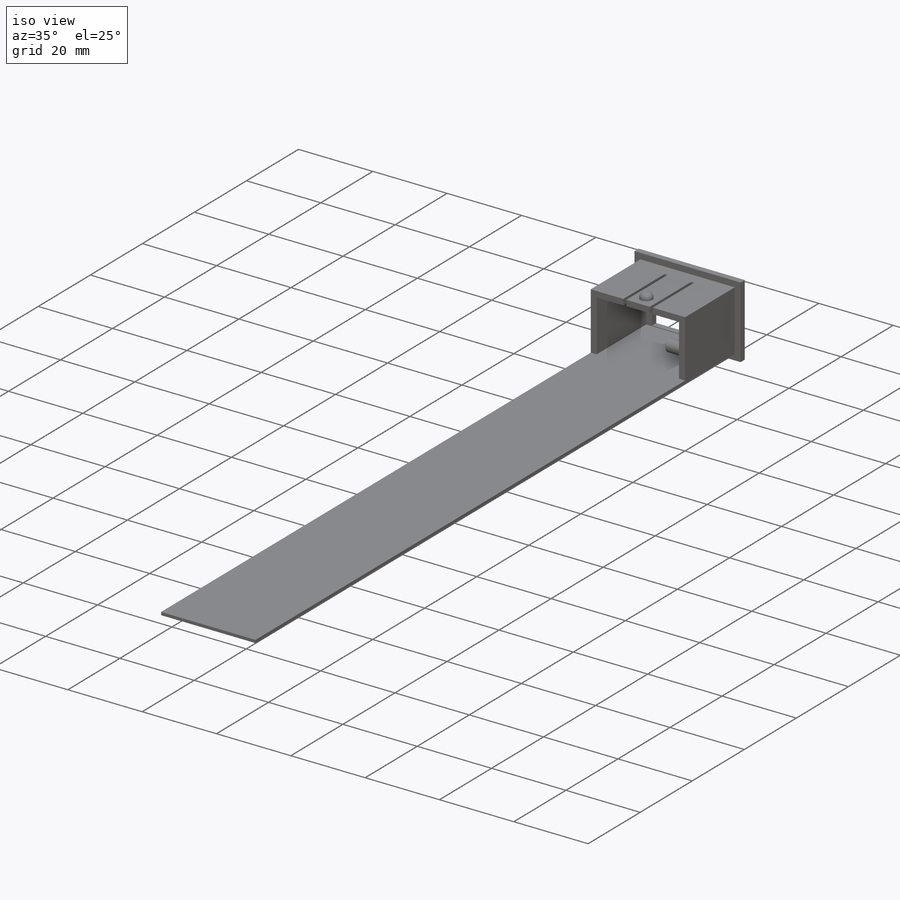
[diagram: iso view]
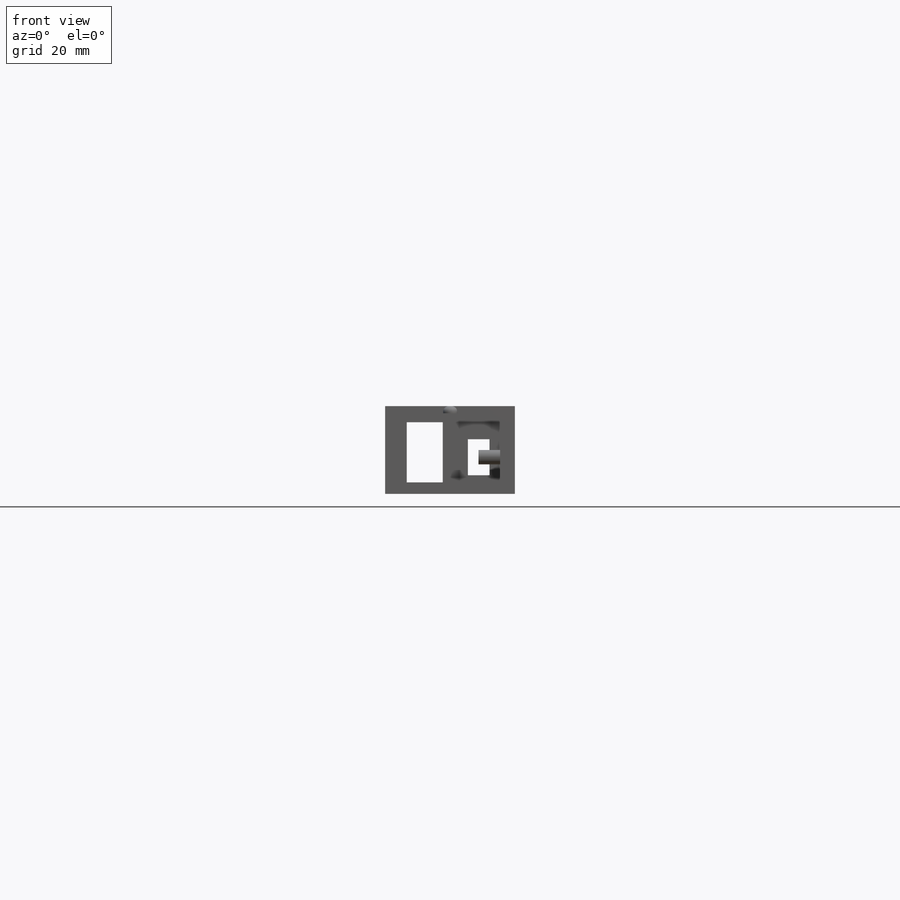
[diagram: front view]
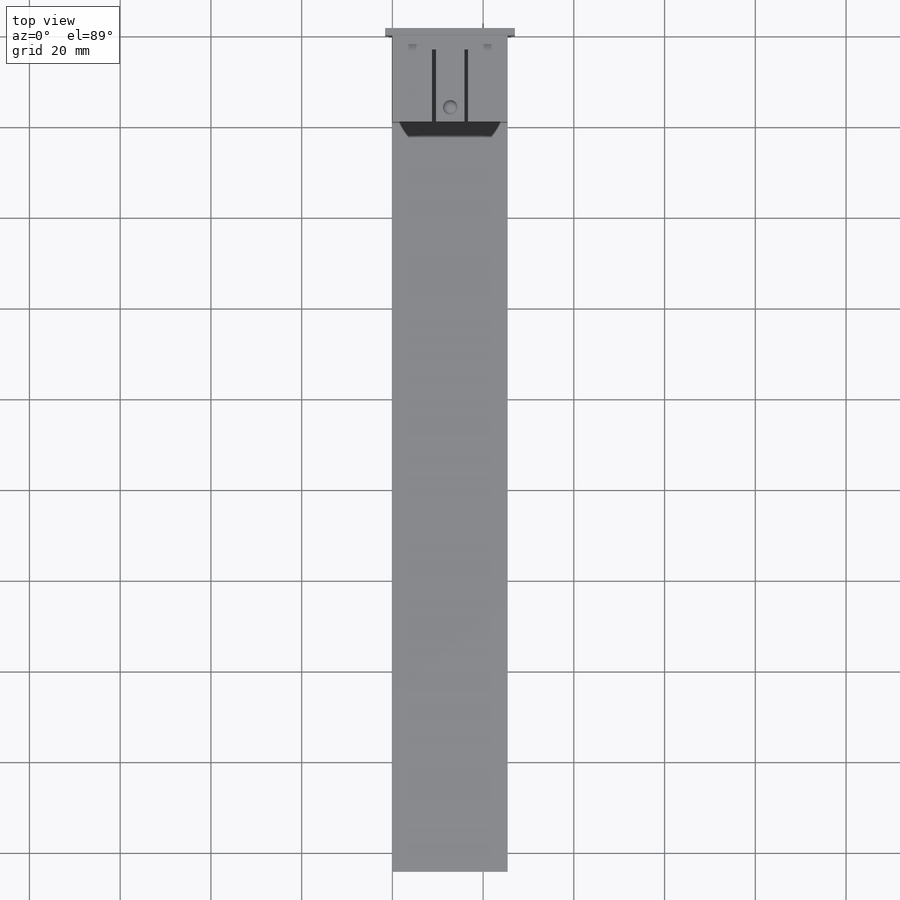
[diagram: top view]
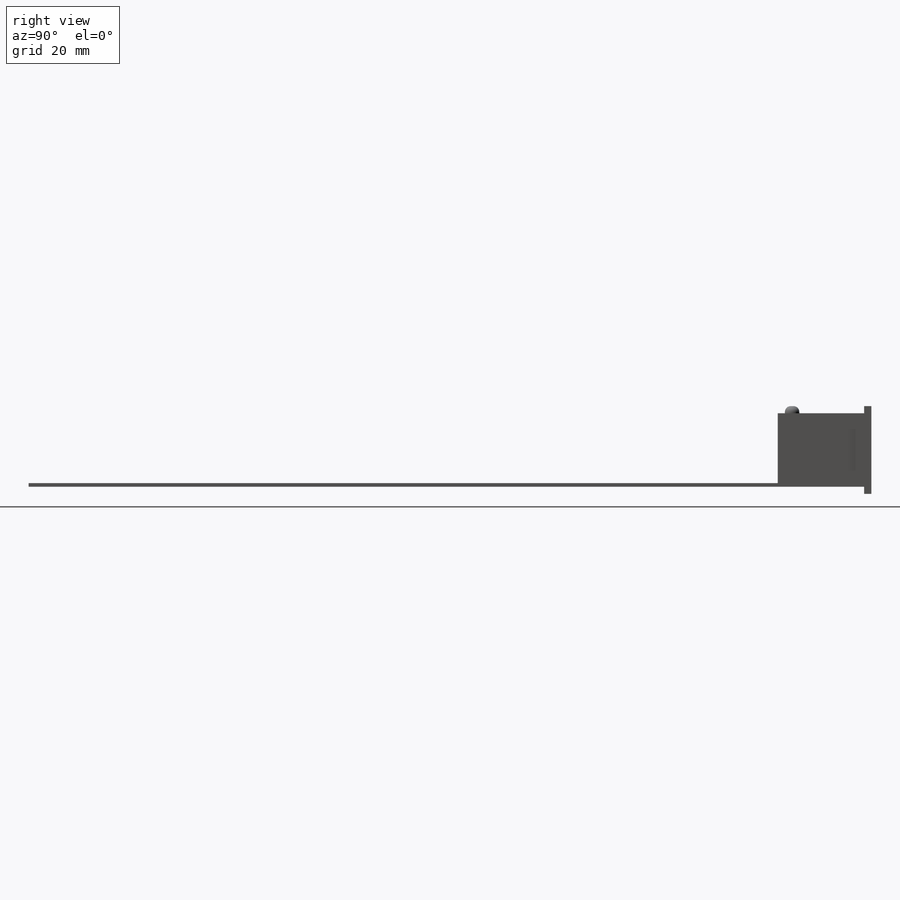
[diagram: right view]
SOLIDWORKS PART (.sldprt)
format: sldprt  version: not decoded by parser v0  size: 527,360 bytes
history: native  units: mm
features: sketch x27, extrude x13, cut_extrude x13, fillet x10, material x1 (+13 scaffold rows collapsed)
feature tree (77):
  scaffold x13  (default folders/planes/origin — collapsed)
  material  "Material <not specified>"
  sketch  "Sketch1"  dims[D1=25.4mm D2=17.78mm]
  extrude  "Boss-Extrude1"  Depth=19.05mm
  sketch  "Sketch2"  dims[D1=~0.79375mm]
  extrude  "Boss-Extrude2"  Depth=165.1mm
  sketch  "Sketch3"  dims[D1=1.5875mm]
  extrude  "Boss-Extrude3"  Depth=1.5875mm
  sketch  "Sketch4"  dims[D1=1.5875mm]
  cut_extrude  "Cut-Extrude1"  Depth=19.05mm
  sketch  "Sketch5"  dims[D1=7.9375mm D2=12.7mm D3=7.9375mm]
  cut_extrude  "Cut-Extrude2"  Depth=1.5875mm
  sketch  "Sketch8"  dims[D1=4.7625mm]
  cut_extrude  "Cut-Extrude3"  Depth=1.5875mm
  sketch  "Sketch23"  dims[D1=1.5875mm D2=184.15mm]
  extrude  "Boss-Extrude8"  Depth=22.225mm
  sketch  "Sketch24"  dims[D1=1.5875mm]
  cut_extrude  "Cut-Extrude8"  Depth=19.05mm
  sketch  "Sketch25"  dims[D1=1.5875mm]
  cut_extrude  "Cut-Extrude10"  Depth=1.5875mm
  sketch  "Sketch30"
  extrude  "Boss-Extrude12"  Depth=7.9375mm
  sketch  "Sketch31"  dims[D1=7.9375mm D2=1.5875mm]
  cut_extrude  "Cut-Extrude11"  Depth=1.5875mm
  sketch  "Sketch32"
  extrude  "Boss-Extrude13"  Depth=7.9375mm
  sketch  "Sketch33"  dims[D1=4.7625mm]
  cut_extrude  "Cut-Extrude12"  Depth=3.175mm
  sketch  "Sketch34"
  extrude  "Boss-Extrude14"  Depth=4.7625mm
  sketch  "Sketch35"
  cut_extrude  "Cut-Extrude13"  Depth=1.5875mm
  sketch  "Sketch36"
  extrude  "Boss-Extrude15"  Depth=1.5875mm
  sketch  "Sketch37"
  sketch  "Sketch38"  dims[D1=15.875mm]
  extrude  "Boss-Extrude16"  Depth=4.7625mm
  sketch  "Sketch39"  dims[c1.D1=~0.79375mm c1.D2=~0.800031mm c2.D1=~0.79375mm c2.D2=15.875mm]
  cut_extrude  "Cut-Extrude14"  Depth=1.5875mm
  sketch  "Sketch40"  dims[D1=15.875mm D2=~0.79375mm]
  cut_extrude  "Cut-Extrude15"  Depth=1.5875mm
  sketch  "Sketch41"  dims[D1=3.175mm]
  extrude  "Boss-Extrude17"  Depth=1.5875mm
  fillet  "Fillet23"  Radius=1.27mm
  fillet  "Fillet9"  Radius=1.27mm
  fillet  "Fillet10"  Radius=1.27mm
  fillet  "Fillet11"  Radius=1.27mm
  fillet  "Fillet12"  Radius=1.27mm
  fillet  "Fillet13"  Radius=1.27mm
  fillet  "Fillet14"  Radius=1.27mm
  fillet  "Fillet15"  Radius=1.27mm
  fillet  "Fillet16"  Radius=1.27mm
  sketch  "Sketch9"  dims[D1=15.875mm D2=~0.79375mm]
  cut_extrude  "Cut-Extrude5"  Depth=1.5875mm
  sketch  "Sketch11"  dims[D1=~0.79375mm]
  cut_extrude  "Cut-Extrude6"  Depth=1.5875mm
  sketch  "Sketch12"
  cut_extrude  "Cut-Extrude7"  Depth=15.875mm
  sketch  "Sketch13"  dims[D1=3.175mm]
  extrude  "Boss-Extrude5"  Depth=1.5875mm
  fillet  "Fillet22"  Radius=1.27mm
  sketch  "Sketch17"
  extrude  "Boss-Extrude6"  Depth=0.79375mm
  sketch  "Sketch18"
  extrude  "Boss-Extrude7"  Depth=0.79375mm
decode coverage: 54 of 63 modeling features carry decoded parameters
note: ~ marks probable driven/reference dimensions
note: suppression state not decoded; provenance and decode notes live in map.json
